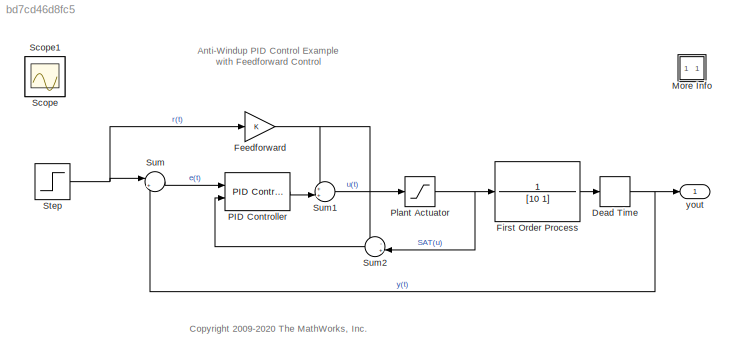
MODEL slx_bd7cd46d8fc5
KIND model
CONFIG AbsTol = auto
CONFIG EnableMultiTasking = on
CONFIG FixedStep = auto
CONFIG MaxStep = auto
CONFIG MinStep = auto
CONFIG RelTol = 1e-5
CONFIG SampleTimeConstraint = Unconstrained
CONFIG SolverName = ode45
CONFIG StartTime = 0.0
CONFIG StopTime = 200
BLOCK [TransportDelay] Dead Time
  BufferSize = 2048
  DelayTime = 2
  Ports = [1, 1]
BLOCK [Gain] Feedforward
BLOCK [TransferFcn] First Order Process
  Denominator = [10 1]
  Numerator = 1
BLOCK [SubSystem] More Info
  OpenFcn = showExample('simulink_industrial/AntiWindupControlUsingAPIDControllerExample')
  Ports = []
  RequestExecContextInheritance = off
BLOCK [Reference] PID Controller  REF=slpidlib/PID Controller
  Ports = [2, 1]
  SourceBlock = slpidlib/PID Controller
  SourceProductBaseCode = SL
  SourceType = PID 1dof
BLOCK [Saturate] Plant Actuator
  LowerLimit = -10
  UpperLimit = 10
BLOCK [Scope] Scope
  Floating = off
  IOType = viewer
  NumInputPorts = 1
  Ports = []
  ScopeSpecificationString = Simulink.scopes.TimeScopeBlockCfg('CurrentConfiguration', extmgr.ConfigurationSet(extmgr.Configuration('Core','General UI',true),extmgr.Configuration('Core','Source UI',true),extmgr.Configuration('Sources','WiredSimulink',true,'DataLoggingMaxPoints','7500','DataLoggingLimitDataPoints',true,'DataLoggingSaveFormat','Array','DataLoggingDecimation','1','DataLoggingDecimateData',true),extmgr.Configurat...<+1676ch>
BLOCK [Scope] Scope1
  Floating = off
  IOType = viewer
  NumInputPorts = 1
  Ports = []
  ScopeSpecificationString = Simulink.scopes.TimeScopeBlockCfg('CurrentConfiguration', extmgr.ConfigurationSet(extmgr.Configuration('Core','General UI',true),extmgr.Configuration('Core','Source UI',true),extmgr.Configuration('Sources','WiredSimulink',true,'DataLoggingVariableName','ScopeData1','DataLoggingMaxPoints','7500','DataLoggingLimitDataPoints',true,'DataLoggingSaveFormat','Array','DataLoggingDecimation','1','DataLoggi...<+1717ch>
BLOCK [Step] Step
  After = 5
  Before = 10
  SampleTime = 0
  Time = 80
BLOCK [Sum] Sum
  Inputs = |+-
  Ports = [2, 1]
BLOCK [Sum] Sum1
  Inputs = ++|
  Ports = [2, 1]
BLOCK [Sum] Sum2
  Inputs = -+|
  NameLocation = top
  Ports = [2, 1]
BLOCK [Outport] yout
  VectorParamsAs1DForOutWhenUnconnected = off
ANNOTATION (root): Anti-Windup PID Control Example with Feedforward Control
ANNOTATION (root): <copyright redacted>
NET Dead Time:1 -> Sum:2, yout:1
NET Feedforward:1 -> Sum1:1, Sum2:1
LINE First Order Process:1 -> Dead Time:1
LINE PID Controller:1 -> Sum1:2
NET Plant Actuator:1 -> First Order Process:1, Sum2:2
NET Step:1 -> Feedforward:1, Sum:1
LINE Sum1:1 -> Plant Actuator:1
LINE Sum2:1 -> PID Controller:2
LINE Sum:1 -> PID Controller:1
note: NET lines group one-source signal fan-out (src -> all destinations, sorted); 1:1 wires keep LINE
